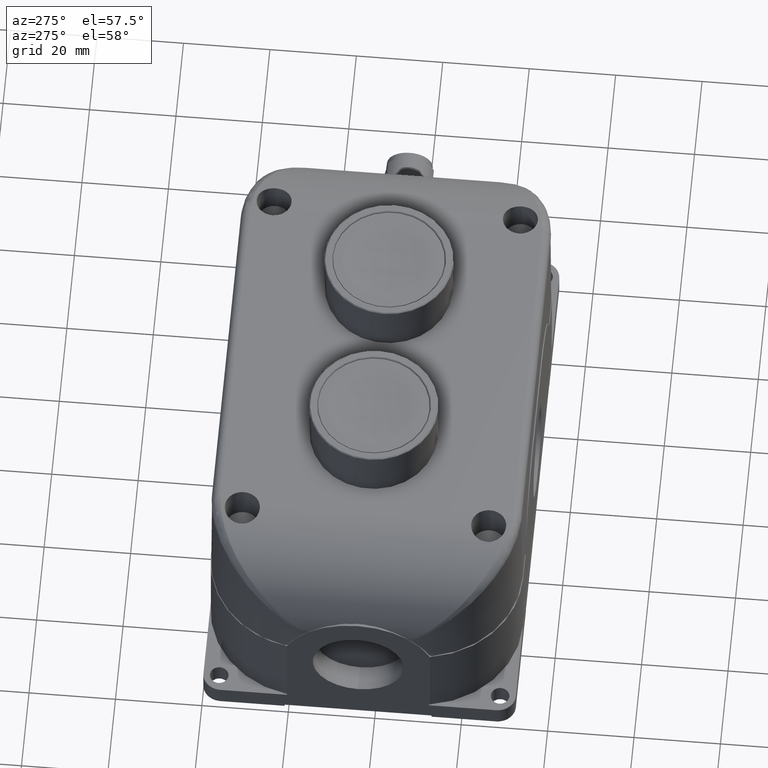
[diagram: clean part render]
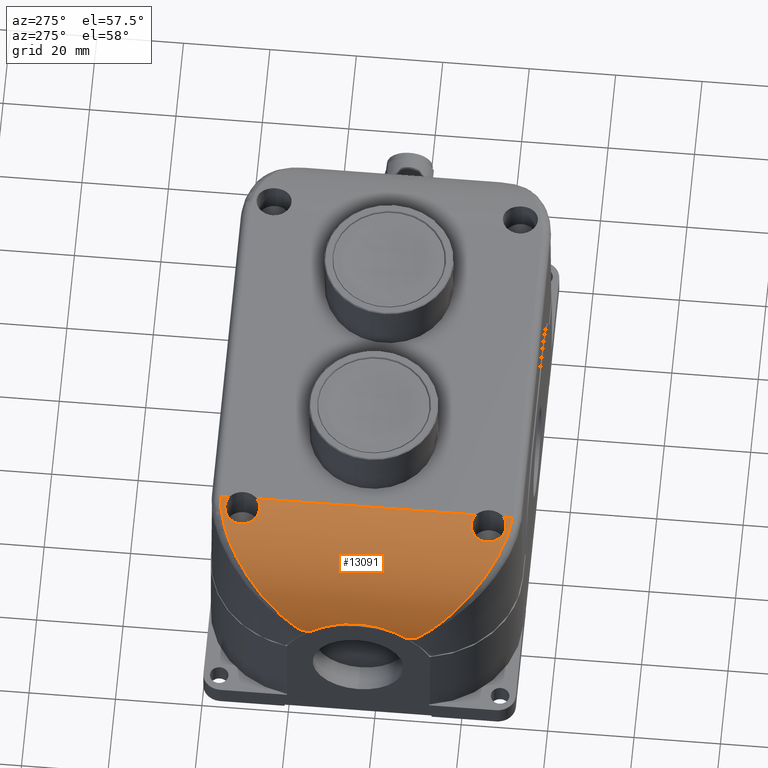
[diagram: same view with one face highlighted and labeled with its STEP entity id]
A machine part, auxiliary view. The second image highlights one B-rep face of the part: STEP entity #13091.
In plain terms, the highlighted cylindrical surface (partial cylindrical patch) has radius 22 mm, axis along (-0, 1, 0).
Its self-contained STEP definition (entity closure, byte-faithful):
#1 = CARTESIAN_POINT ( 'NONE',  ( 0.8661417322834558119, -0.09256890255721395011, 2.098425196850390417 ) ) ;
#67 = CARTESIAN_POINT ( 'NONE',  ( 0.3345613764245082278, -2.558619124878928286, 1.916113855097292706 ) ) ;
#99 = CARTESIAN_POINT ( 'NONE',  ( 0.1007366091802023716, -0.5548962451615992997, 1.638534046196226557 ) ) ;
#102 = CARTESIAN_POINT ( 'NONE',  ( 0.001841612179823913856, -1.856898138967294276, 1.288735238603163413 ) ) ;
#104 = CARTESIAN_POINT ( 'NONE',  ( 0.6127087765381049600, -2.582246262243622859, 2.060521301903375235 ) ) ;
#188 = B_SPLINE_CURVE_WITH_KNOTS ( 'NONE', 3,
 ( #22992, #591, #8344, #15845, #6157, #13540, #15729, #9917, #6632, #17315, #15483, #22864, #6272, #13792, #14028, #13662, #10030, #4572, #23113, #17425, #6518, #21065, #4458, #13908, #11849, #6403, #21185, #19246, #12079, #2633, #815, #5173, #17908, #18145, #16451, #6770, #7242, #1650, #19837, #5410, #19966, #20083, #14162, #21671, #23351, #8576, #9048, #10627, #18030, #10852, #8703, #8927, #23484, #21557, #3237, #4936, #12569, #6998, #1541, #1425, #19727, #12330, #16323, #18254, #1182, #23599, #14629, #5049, #3587, #10498, #14280, #23836, #3115, #16093, #5299, #22023, #23715, #21909, #7122, #12441, #14518, #20195, #3355, #1307, #16214, #8818, #3470, #6890, #10742, #17789, #12791, #15967, #14392, #21783, #12686, #67, #203, #10976, #18497, #9163, #7354, #11329, #9271, #18382, #9639, #16561, #14737, #18606, #1882, #17036, #7472, #18854, #1999, #7835, #22378, #5887, #22612, #13402, #20551, #23948, #13267, #22133, #6016 ),
 .UNSPECIFIED., .F., .F.,
 ( 4, 2, 1, 1, 1, 2, 2, 2, 1, 1, 1, 2, 2, 2, 2, 1, 1, 1, 1, 2, 2, 2, 2, 1, 1, 1, 1, 2, 2, 2, 1, 1, 1, 2, 2, 2, 1, 1, 1, 2, 2, 2, 2, 1, 1, 1, 1, 2, 2, 2, 2, 1, 1, 1, 1, 2, 2, 2, 2, 1, 1, 1, 1, 2, 2, 2, 2, 1, 1, 1, 1, 2, 2, 2, 2, 1, 1, 1, 2, 2, 4 ),
 ( 0.000000000000000000, 0.007812500000009754350, 0.01171875000001456821, 0.01367187500001721887, 0.01464843750001887032, 0.01513671875001937339, 0.01562500000001987646, 0.02343750000002967765, 0.02734375000003480549, 0.02929687500003716125, 0.03027343750003834086, 0.03076171875003906250, 0.03125000000003978762, 0.04687500000005581646, 0.05468750000006387252, 0.05859375000006774442, 0.06054687500006952772, 0.06152343750007042977, 0.06201171875007103346, 0.06225585937507118611, 0.06250000000007133183, 0.09375000000008341938, 0.1093750000000894701, 0.1171875000000924955, 0.1210937500000941747, 0.1230468750000950073, 0.1240234375000954237, 0.1245117187500954792, 0.1250000000000955347, 0.1562500000001010303, 0.1718750000001037781, 0.1796875000001054989, 0.1835937500001063594, 0.1855468750001066369, 0.1875000000001068867, 0.2187500000001071365, 0.2343750000001072475, 0.2421875000001071365, 0.2460937500001066924, 0.2480468750001063039, 0.2500000000001059153, 0.3125000000001009193, 0.3437500000000987543, 0.3593750000000976441, 0.3671875000000973110, 0.3710937500000969780, 0.3730468750000966449, 0.3740234375000962563, 0.3750000000000958122, 0.4375000000000536793, 0.4687500000000326406, 0.4843750000000221489, 0.4921875000000168199, 0.4960937500000141553, 0.4980468750000129896, 0.4990234375000127676, 0.5000000000000125455, 0.5625000000000016653, 0.5937499999999961142, 0.6093749999999936717, 0.6171874999999928946, 0.6210937499999923395, 0.6230468749999923395, 0.6240234374999925615, 0.6249999999999927836, 0.6874999999999946709, 0.7187499999999955591, 0.7343749999999960032, 0.7421874999999964473, 0.7460937499999963363, 0.7480468749999962252, 0.7490234374999960032, 0.7499999999999956701, 0.8124999999999967804, 0.8437499999999975575, 0.8593749999999976685, 0.8671874999999977796, 0.8710937499999977796, 0.8730468749999978906, 0.8749999999999980016, 1.000000000000000000 ),
 .UNSPECIFIED. ) ;
#203 = CARTESIAN_POINT ( 'NONE',  ( 0.3348529361902816692, -2.558841023264453174, 1.916340435162601663 ) ) ;
#230 = CARTESIAN_POINT ( 'NONE',  ( 0.01829746725359750192, -0.7762243022906477607, 1.409384866880365239 ) ) ;
#298 = CARTESIAN_POINT ( 'NONE',  ( 0.6085173729111201801, -2.545165003709337626, 2.059224326939194327 ) ) ;
#345 = CARTESIAN_POINT ( 'NONE',  ( 0.003236891198601761326, -0.8866149476767052340, 1.307095501945814142 ) ) ;
#418 = CARTESIAN_POINT ( 'NONE',  ( 0.7692112186359534309, -0.1415099728692291170, 2.093016579969817048 ) ) ;
#457 = CARTESIAN_POINT ( 'NONE',  ( 0.01737727192194687617, -0.7806402993266234880, 1.404911501961103149 ) ) ;
#530 = VECTOR ( 'NONE', #14732, 39.37007874015748143 ) ;
#549 = CARTESIAN_POINT ( 'NONE',  ( 0.7913578737794561002, -0.1432503447294375676, 2.095222525144630588 ) ) ;
#591 = CARTESIAN_POINT ( 'NONE',  ( 0.001841720136488634446, -1.918769987045393588, 1.288736891464564271 ) ) ;
#607 = VERTEX_POINT ( 'NONE', #12853 ) ;
#815 = CARTESIAN_POINT ( 'NONE',  ( 0.006343583512824237797, -1.995642458921169204, 1.336919255017511965 ) ) ;
#918 = CARTESIAN_POINT ( 'NONE',  ( 0.8133088647411277350, -0.4540116201021476283, 2.096842758641017657 ) ) ;
#1182 = CARTESIAN_POINT ( 'NONE',  ( 0.09889405128692130287, -2.287198780058350867, 1.634379372454685342 ) ) ;
#1307 = CARTESIAN_POINT ( 'NONE',  ( 0.2140365409079127701, -2.448348944538592864, 1.802336510270447834 ) ) ;
#1339 = CARTESIAN_POINT ( 'NONE',  ( 0.7488378059799274400, -0.1068207462019151732, 2.090610129235897841 ) ) ;
#1425 = CARTESIAN_POINT ( 'NONE',  ( 0.05685451682635827425, -2.197646050534180162, 1.540919633621040896 ) ) ;
#1456 = CARTESIAN_POINT ( 'NONE',  ( 0.3361118976784933099, -0.2863861123453723678, 1.917316380326353320 ) ) ;
#1463 = CARTESIAN_POINT ( 'NONE',  ( 0.7469714852096190905, -2.703360503351345034, 2.090219218594266959 ) ) ;
#1531 = CARTESIAN_POINT ( 'NONE',  ( 0.6558971625211310608, -0.1874065299168301557, 2.072539602161936667 ) ) ;
#1541 = CARTESIAN_POINT ( 'NONE',  ( 0.05631229575117554370, -2.196278614279569830, 1.539494085601603279 ) ) ;
#1568 = CARTESIAN_POINT ( 'NONE',  ( 0.6669168442397416241, -0.1254023315642557312, 2.075202146679974824 ) ) ;
#1572 = CARTESIAN_POINT ( 'NONE',  ( 0.6249487372184632239, -2.617233984142524950, 2.064206118165319293 ) ) ;
#1597 = DIRECTION ( 'NONE',  ( 1.193427144769828181E-32, -1.000000000000000000, -1.301089748959230030E-17 ) ) ;
#1650 = CARTESIAN_POINT ( 'NONE',  ( 0.01613736868033904120, -2.059545959847505880, 1.398714096457128298 ) ) ;
#1674 = LINE ( 'NONE', #9075, #4371 ) ;
#1800 = CARTESIAN_POINT ( 'NONE',  ( 0.6050715319361981148, -0.1436980444268200208, 2.058759013938519011 ) ) ;
#1803 = CARTESIAN_POINT ( 'NONE',  ( 0.01856980597421135568, -1.230980398208527449, 1.410740652623066582 ) ) ;
#1874 = ORIENTED_EDGE ( 'NONE', *, *, #21973, .F. ) ;
#1882 = CARTESIAN_POINT ( 'NONE',  ( 0.4856890277940424383, -2.652311264442051009, 2.010394956813148504 ) ) ;
#1910 = CARTESIAN_POINT ( 'NONE',  ( 0.007353560498031712529, -0.8418585548297514709, 1.344951615343757290 ) ) ;
#1914 = CARTESIAN_POINT ( 'NONE',  ( 0.01495228573199695356, -1.670657243704156469, 1.392656594265209602 ) ) ;
#1915 = CARTESIAN_POINT ( 'NONE',  ( 0.8542576590813031334, -2.679908787729352149, 2.098425196850390861 ) ) ;
#1963 = CARTESIAN_POINT ( 'NONE',  ( 0.001841612179823913856, -1.856898138967294276, 1.288735238603163413 ) ) ;
#1999 = CARTESIAN_POINT ( 'NONE',  ( 0.6049101541471098020, -2.702050348076197928, 2.058243834194321664 ) ) ;
#2031 = CARTESIAN_POINT ( 'NONE',  ( 0.05802391125949554751, -0.6455117925704212389, 1.543968020636553140 ) ) ;
#2045 = ORIENTED_EDGE ( 'NONE', *, *, #2533, .T. ) ;
#2106 = CARTESIAN_POINT ( 'NONE',  ( 0.6085173729111204022, -2.537717218982984413, 2.059224326939195215 ) ) ;
#2154 = CARTESIAN_POINT ( 'NONE',  ( 0.01233768976745509491, -0.8070361716877841873, 1.378402867395982945 ) ) ;
#2157 = CARTESIAN_POINT ( 'NONE',  ( 0.01867239427388533990, -1.615114764924744373, 1.411624699434561592 ) ) ;
#2271 = CARTESIAN_POINT ( 'NONE',  ( 0.04907954786700267219, -0.6686271151605495122, 1.519958012357263577 ) ) ;
#2369 = B_SPLINE_CURVE_WITH_KNOTS ( 'NONE', 3,
 ( #23702, #5401, #8806, #3346, #16203, #23939, #10730, #22012, #18135, #20183, #1531, #8919, #14505, #12782, #3578, #10964, #22120, #5516, #20664, #418, #12903, #549, #7820, #5759, #4061, #15206, #7948, #13140 ),
 .UNSPECIFIED., .F., .F.,
 ( 4, 2, 2, 2, 2, 2, 2, 2, 2, 2, 2, 2, 2, 4 ),
 ( 0.009078894597348247802, 0.009645839946869006615, 0.01021278529638976716, 0.01134667599543128479, 0.01191362134495204360, 0.01248056669447280241, 0.01304751204399355949, 0.01361445739351431830, 0.01474834809255582205, 0.01531529344207657566, 0.01588223879159732926, 0.01644918414111808114, 0.01701612949063883648, 0.01815002018968034370 ),
 .UNSPECIFIED. ) ;
#2386 = CARTESIAN_POINT ( 'NONE',  ( 0.003184492443380951884, -0.8874633501236660615, 1.306488029038054277 ) ) ;
#2533 = EDGE_CURVE ( 'NONE', #3013, #19167, #12434, .T. ) ;
#2633 = CARTESIAN_POINT ( 'NONE',  ( 0.006327623813133101752, -1.995498356776611582, 1.336788055019816790 ) ) ;
#2636 = B_SPLINE_CURVE_WITH_KNOTS ( 'NONE', 3,
 ( #3974, #7274, #12715, #16952, #18639, #12951, #1803, #20353, #3749, #12824, #3620, #14660, #11366, #10883, #11012, #18288, #2157, #1914, #9303, #16592, #18765, #16704, #5800, #102 ),
 .UNSPECIFIED., .F., .F.,
 ( 4, 2, 2, 2, 2, 2, 2, 2, 2, 2, 2, 4 ),
 ( 5.421010862427522170E-20, 0.002953563514493869578, 0.005907127028987739156, 0.007383908786234678716, 0.008860690543481618275, 0.01181425405797551474, 0.01329103581522247252, 0.01476781757246943202, 0.01772138108696335104, 0.01919816284421031055, 0.02067494460145726659, 0.02362850811595116132 ),
 .UNSPECIFIED. ) ;
#2843 = CARTESIAN_POINT ( 'NONE',  ( 0.8661417322834599197, -1.423117759614849209, 1.232283464566926279 ) ) ;
#2879 = CARTESIAN_POINT ( 'NONE',  ( 0.001953792776274586480, -0.9163902053653795177, 1.290538851265910170 ) ) ;
#2998 = CARTESIAN_POINT ( 'NONE',  ( 0.002236803127146920478, -0.9075597643606624354, 1.294491036417369845 ) ) ;
#3010 = DIRECTION ( 'NONE',  ( 3.191891195797319926E-15, -1.000000000000000000, -1.301089748958940062E-17 ) ) ;
#3013 = VERTEX_POINT ( 'NONE', #1963 ) ;
#3023 = DIRECTION ( 'NONE',  ( 1.193427144769828181E-32, -1.000000000000000000, -1.301089748959230030E-17 ) ) ;
#3094 = CARTESIAN_POINT ( 'NONE',  ( 0.6127087765380857531, -0.3381517740546485240, 2.060521301903370794 ) ) ;
#3115 = CARTESIAN_POINT ( 'NONE',  ( 0.1223947386637908585, -2.327259747226173570, 1.676177694695409448 ) ) ;
#3211 = CARTESIAN_POINT ( 'NONE',  ( 0.6502906128702754529, -0.4096729153429863879, 2.071173551909850197 ) ) ;
#3237 = CARTESIAN_POINT ( 'NONE',  ( 0.04699846577615317961, -2.171584271941462418, 1.513783572514300513 ) ) ;
#3346 = CARTESIAN_POINT ( 'NONE',  ( 0.6111554180205517328, -0.2712228424840503749, 2.060042306304007198 ) ) ;
#3355 = CARTESIAN_POINT ( 'NONE',  ( 0.2135183608964209279, -2.447778197691483637, 1.801743200329003036 ) ) ;
#3394 = CARTESIAN_POINT ( 'NONE',  ( 0.6911231256759843289, -2.685062381047807367, 2.080584779871272438 ) ) ;
#3455 = CARTESIAN_POINT ( 'NONE',  ( 0.6188970401196082216, -2.486657168306565691, 2.062397958311685819 ) ) ;
#3470 = CARTESIAN_POINT ( 'NONE',  ( 0.2528001529975701933, -2.488944620583614320, 1.844475875940662313 ) ) ;
#3578 = CARTESIAN_POINT ( 'NONE',  ( 0.6911618647547002059, -0.1611485973169818620, 2.080593241783396774 ) ) ;
#3587 = CARTESIAN_POINT ( 'NONE',  ( 0.1199410752247345863, -2.323297000051620209, 1.672044755812354122 ) ) ;
#3617 = CARTESIAN_POINT ( 'NONE',  ( 0.3405797950331863055, -0.2830180749166740783, 1.920754470845516870 ) ) ;
#3620 = CARTESIAN_POINT ( 'NONE',  ( 0.02453863454552325518, -1.383614860935655111, 1.436992346969364398 ) ) ;
#3621 = CARTESIAN_POINT ( 'NONE',  ( 0.8133088647411338412, -2.698106108291115746, 2.096842758641017657 ) ) ;
#3746 = CARTESIAN_POINT ( 'NONE',  ( 0.03519911008238407746, -0.7104900611021052192, 1.476693857342990412 ) ) ;
#3749 = CARTESIAN_POINT ( 'NONE',  ( 0.02152459155223300849, -1.287633214198647291, 1.424205414149503968 ) ) ;
#3750 = CARTESIAN_POINT ( 'NONE',  ( 0.6189180320872201824, -2.603747136501588511, 2.062404331589688056 ) ) ;
#3857 = CARTESIAN_POINT ( 'NONE',  ( 0.08341038291025541784, -0.5885326879020100765, 1.603368218224862307 ) ) ;
#3972 = CARTESIAN_POINT ( 'NONE',  ( 0.006411953730265049570, -0.8499734988133909042, 1.337479671303790640 ) ) ;
#3974 = CARTESIAN_POINT ( 'NONE',  ( 0.001841612179821728321, -0.9893373802624078062, 1.288735238603165856 ) ) ;
#4061 = CARTESIAN_POINT ( 'NONE',  ( 0.8204096317628171153, -0.1504267633096004753, 2.097244569625061672 ) ) ;
#4100 = CARTESIAN_POINT ( 'NONE',  ( 0.05772343107110164406, -0.6462621750073401783, 1.543187831557428780 ) ) ;
#4221 = CARTESIAN_POINT ( 'NONE',  ( 0.01757150610732320650, -0.7796992037822456645, 1.405864209362035266 ) ) ;
#4371 = VECTOR ( 'NONE', #3023, 39.37007874015748143 ) ;
#4429 = CYLINDRICAL_SURFACE ( 'NONE', #20263, 0.8661417322834645827 ) ;
#4458 = CARTESIAN_POINT ( 'NONE',  ( 0.004967016337723701748, -1.982143988605733487, 1.324955182837775025 ) ) ;
#4572 = CARTESIAN_POINT ( 'NONE',  ( 0.003135471516476661703, -1.957974911269999785, 1.305915798945181061 ) ) ;
#4816 = CARTESIAN_POINT ( 'NONE',  ( 0.001841844898760048839, -0.9239374927080419297, 1.288738801626836405 ) ) ;
#4841 = VECTOR ( 'NONE', #1597, 39.37007874015748143 ) ;
#4912 = CARTESIAN_POINT ( 'NONE',  ( 0.7252015191286655948, -0.4553616320702779663, 2.087007149983035159 ) ) ;
#4936 = CARTESIAN_POINT ( 'NONE',  ( 0.04998130175751006044, -2.179837738423962445, 1.522366639517260367 ) ) ;
#5049 = CARTESIAN_POINT ( 'NONE',  ( 0.1172873721510090811, -2.318962879577000979, 1.667524064741148671 ) ) ;
#5080 = CARTESIAN_POINT ( 'NONE',  ( 0.3379716277181327166, -0.2849797114050886537, 1.918752244877042656 ) ) ;
#5173 = CARTESIAN_POINT ( 'NONE',  ( 0.007431803143690587053, -2.005452352513765746, 1.345855213137951534 ) ) ;
#5208 = CARTESIAN_POINT ( 'NONE',  ( 0.6700753136406780719, -0.1245577888117739979, 2.075942504065766414 ) ) ;
#5214 = CARTESIAN_POINT ( 'NONE',  ( 0.7767494861681516483, -2.704482640355337253, 2.093831852209590672 ) ) ;
#5278 = CARTESIAN_POINT ( 'NONE',  ( 0.7915283417911979091, -0.4588656622867783308, 2.095237368245717491 ) ) ;
#5299 = CARTESIAN_POINT ( 'NONE',  ( 0.1511359486014044184, -2.371022879156061247, 1.721822672184257774 ) ) ;
#5328 = CARTESIAN_POINT ( 'NONE',  ( 0.3368555598309774801, -0.2858231826502009021, 1.917891128537969836 ) ) ;
#5387 = CARTESIAN_POINT ( 'NONE',  ( 0.8661417322834634724, -2.753666616672484135, 2.098425196850390417 ) ) ;
#5401 = CARTESIAN_POINT ( 'NONE',  ( 0.6085173729111008623, -0.2936227307940071918, 2.059224326939190775 ) ) ;
#5410 = CARTESIAN_POINT ( 'NONE',  ( 0.01701630714355202578, -2.063925009403240640, 1.403127955378421277 ) ) ;
#5437 = CARTESIAN_POINT ( 'NONE',  ( 0.4870048761947594618, -0.1933069962651689233, 2.011036956863434089 ) ) ;
#5516 = CARTESIAN_POINT ( 'NONE',  ( 0.7469520531852735790, -0.1428754138917538441, 2.090216910384532500 ) ) ;
#5559 = CARTESIAN_POINT ( 'NONE',  ( 0.006386756890016602461, -0.8501997396606104651, 1.337273404447492542 ) ) ;
#5683 = CARTESIAN_POINT ( 'NONE',  ( 0.004161808669091626202, -0.8734896715513945642, 1.317128912101408922 ) ) ;
#5759 = CARTESIAN_POINT ( 'NONE',  ( 0.8133280650598400108, -0.1481332300404223645, 2.096844251388312763 ) ) ;
#5797 = CARTESIAN_POINT ( 'NONE',  ( 0.01746934059617263543, -0.7801937740536216692, 1.405363506644868643 ) ) ;
#5800 = CARTESIAN_POINT ( 'NONE',  ( 0.003412497235303856707, -1.825827447706299456, 1.312786141613737190 ) ) ;
#5887 = CARTESIAN_POINT ( 'NONE',  ( 0.6524807389082794007, -2.716805881828814773, 2.071674713695164982 ) ) ;
#5915 = CARTESIAN_POINT ( 'NONE',  ( 0.01929456246310256098, -0.7715566747232763811, 1.414120924181112127 ) ) ;
#5996 = CARTESIAN_POINT ( 'NONE',  ( 0.8661417322834584764, -2.419747615847355870, 2.098425196850353114 ) ) ;
#6016 = CARTESIAN_POINT ( 'NONE',  ( 0.8661417322834634724, -2.753666616672484135, 2.098425196850390417 ) ) ;
#6045 = CARTESIAN_POINT ( 'NONE',  ( 0.01781143067775255856, -0.7785433622549443600, 1.407034765784137109 ) ) ;
#6091 = LINE ( 'NONE', #17362, #8962 ) ;
#6111 = CARTESIAN_POINT ( 'NONE',  ( 0.8410948656901580112, -2.402851261019194329, 2.098173010866299038 ) ) ;
#6132 = DIRECTION ( 'NONE',  ( -3.191891195797319926E-15, 1.000000000000000000, 1.301089748958940062E-17 ) ) ;
#6157 = CARTESIAN_POINT ( 'NONE',  ( 0.002018005191106077376, -1.930959473872766230, 1.291380897992930654 ) ) ;
#6160 = CARTESIAN_POINT ( 'NONE',  ( 0.001841612179820635662, -0.9309917753628809134, 1.288735238603166078 ) ) ;
#6222 = CARTESIAN_POINT ( 'NONE',  ( 0.7111060864151853567, -2.395479636505892795, 2.084544678014395913 ) ) ;
#6272 = CARTESIAN_POINT ( 'NONE',  ( 0.002672794282844555974, -1.949465419140730349, 1.300282862193370859 ) ) ;
#6348 = CARTESIAN_POINT ( 'NONE',  ( 0.8204096317628210011, -2.394521251498585190, 2.097244569625060340 ) ) ;
#6364 = VERTEX_POINT ( 'NONE', #15296 ) ;
#6403 = CARTESIAN_POINT ( 'NONE',  ( 0.006018160754495924768, -1.992657823120648874, 1.334214972749048655 ) ) ;
#6518 = CARTESIAN_POINT ( 'NONE',  ( 0.003899485845611548075, -1.969612399595574326, 1.314541302815372958 ) ) ;
#6632 = CARTESIAN_POINT ( 'NONE',  ( 0.002195237632261224335, -1.937388270734881068, 1.293911110066036096 ) ) ;
#6675 = ORIENTED_EDGE ( 'NONE', *, *, #12844, .T. ) ;
#6770 = CARTESIAN_POINT ( 'NONE',  ( 0.01413481403125706019, -2.049001749342475698, 1.388154366429206643 ) ) ;
#6890 = CARTESIAN_POINT ( 'NONE',  ( 0.2830504602455091168, -2.516496087604383369, 1.872906250714544418 ) ) ;
#6916 = CARTESIAN_POINT ( 'NONE',  ( 0.3838554666793714265, -0.2524194380955180894, 1.951883645287492364 ) ) ;
#6978 = CARTESIAN_POINT ( 'NONE',  ( 0.6111224735997431434, -0.3307337894535465894, 2.060032139637764992 ) ) ;
#6998 = CARTESIAN_POINT ( 'NONE',  ( 0.05550205079349856269, -2.194226904795896882, 1.537355379918053710 ) ) ;
#7029 = CARTESIAN_POINT ( 'NONE',  ( 0.3142301376979201311, -0.3030028607126319939, 1.900348314381299808 ) ) ;
#7099 = CARTESIAN_POINT ( 'NONE',  ( 0.6408157083961573131, -0.3984408576857225714, 2.068643163140307717 ) ) ;
#7122 = CARTESIAN_POINT ( 'NONE',  ( 0.2001505066608203487, -2.432748001196164633, 1.786113544466743086 ) ) ;
#7158 = CARTESIAN_POINT ( 'NONE',  ( 0.3654675519799567285, -0.2650138395158686544, 1.939095042005015479 ) ) ;
#7242 = CARTESIAN_POINT ( 'NONE',  ( 0.01501867422326921657, -2.053797155724211621, 1.392939852383026755 ) ) ;
#7268 = CARTESIAN_POINT ( 'NONE',  ( 0.3563394056406281596, -0.2714292223245945990, 1.932570126590026804 ) ) ;
#7274 = CARTESIAN_POINT ( 'NONE',  ( 0.003412531468734852913, -1.020408748629878515, 1.312786665741832781 ) ) ;
#7354 = CARTESIAN_POINT ( 'NONE',  ( 0.4343466481311820671, -2.624967402383867388, 1.983263205744863811 ) ) ;
#7381 = CARTESIAN_POINT ( 'NONE',  ( 0.04049806941872303306, -0.6935583136394424253, 1.494158554023521601 ) ) ;
#7384 = CARTESIAN_POINT ( 'NONE',  ( 0.7108928996926852095, -2.694757039149242583, 2.084503996820068483 ) ) ;
#7472 = CARTESIAN_POINT ( 'NONE',  ( 0.5447622412522243884, -2.679774028450760515, 2.037226395958504188 ) ) ;
#7507 = CARTESIAN_POINT ( 'NONE',  ( 0.005572685935243510205, -0.8575378698729156923, 1.330589644883156231 ) ) ;
#7510 = CARTESIAN_POINT ( 'NONE',  ( 0.6090373965462060335, -2.560042691810697324, 2.059386875227421587 ) ) ;
#7631 = CARTESIAN_POINT ( 'NONE',  ( 0.006590970735240920912, -0.8483809380421042379, 1.338934956528950782 ) ) ;
#7745 = CARTESIAN_POINT ( 'NONE',  ( 0.2167833920380318191, -0.3950167351456632669, 1.805464622207041847 ) ) ;
#7820 = CARTESIAN_POINT ( 'NONE',  ( 0.7987841407396016891, -0.1445356860657121267, 2.095832879722903996 ) ) ;
#7835 = CARTESIAN_POINT ( 'NONE',  ( 0.6276942356884382956, -2.709402082169073189, 2.064994119039700315 ) ) ;
#7861 = CARTESIAN_POINT ( 'NONE',  ( 0.2158988637297006297, -0.3959855871812753003, 1.804459933399059191 ) ) ;
#7948 = CARTESIAN_POINT ( 'NONE',  ( 0.8542660898482459242, -0.1663333478069784488, 2.098425196850390861 ) ) ;
#8062 = CARTESIAN_POINT ( 'NONE',  ( 0.8542660898482491438, -2.410427835995963886, 2.098425196850391750 ) ) ;
#8206 = VERTEX_POINT ( 'NONE', #11565 ) ;
#8216 = CARTESIAN_POINT ( 'NONE',  ( 0.002751203190810908115, -0.8950630952158752374, 1.301293585233215921 ) ) ;
#8264 = VERTEX_POINT ( 'NONE', #16661 ) ;
#8321 = CARTESIAN_POINT ( 'NONE',  ( 0.7988407537652660872, -0.4575922691694840339, 2.095836973709891637 ) ) ;
#8344 = CARTESIAN_POINT ( 'NONE',  ( 0.001870815502833378082, -1.922420348776649801, 1.289187737262617706 ) ) ;
#8440 = CARTESIAN_POINT ( 'NONE',  ( 0.8205204874370781720, -0.4516783321491611436, 2.097250826054515294 ) ) ;
#8463 = CARTESIAN_POINT ( 'NONE',  ( 0.002938506363504324315, -0.8915008017944369145, 1.303618279187590767 ) ) ;
#8576 = CARTESIAN_POINT ( 'NONE',  ( 0.02616712671754803377, -2.103722745736439581, 1.443658194443876885 ) ) ;
#8703 = CARTESIAN_POINT ( 'NONE',  ( 0.03386347620584882062, -2.131354467480289117, 1.472106399687863165 ) ) ;
#8733 = CARTESIAN_POINT ( 'NONE',  ( 0.4924802857255150546, -0.1906171119330000996, 2.013683368363367254 ) ) ;
#8806 = CARTESIAN_POINT ( 'NONE',  ( 0.6090449587852534430, -0.2860909264626072535, 2.059389243528787716 ) ) ;
#8818 = CARTESIAN_POINT ( 'NONE',  ( 0.2332732170863936749, -2.469480186878517447, 1.824302146539421798 ) ) ;
#8848 = CARTESIAN_POINT ( 'NONE',  ( 0.2934885485727797283, -0.3202234267405317247, 1.882694961537056511 ) ) ;
#8908 = CARTESIAN_POINT ( 'NONE',  ( 0.7469714852096090985, -0.4592660151623781384, 2.090219218594267403 ) ) ;
#8919 = CARTESIAN_POINT ( 'NONE',  ( 0.6668307867890442830, -0.1775793407516313704, 2.075200010190959343 ) ) ;
#8927 = CARTESIAN_POINT ( 'NONE',  ( 0.03409996351720775976, -2.132147903546228740, 1.472925426673008964 ) ) ;
#8955 = CARTESIAN_POINT ( 'NONE',  ( 0.4865034775885100915, -0.1935551159689524181, 2.010792619446633456 ) ) ;
#8962 = VECTOR ( 'NONE', #13718, 39.37007874015748143 ) ;
#9021 = CARTESIAN_POINT ( 'NONE',  ( 0.6189180320872014196, -0.3596526483126159524, 2.062404331589684947 ) ) ;
#9048 = CARTESIAN_POINT ( 'NONE',  ( 0.02840864440463223076, -2.112280694238318990, 1.452446288011292719 ) ) ;
#9075 = CARTESIAN_POINT ( 'NONE',  ( 0.8661417322834560339, -1.423117759614841660, 2.098425196850391750 ) ) ;
#9081 = CARTESIAN_POINT ( 'NONE',  ( 0.6354545612934311416, -0.1339020790291109431, 2.067728402435348389 ) ) ;
#9112 = LINE ( 'NONE', #18319, #4841 ) ;
#9163 = CARTESIAN_POINT ( 'NONE',  ( 0.4215996992656261821, -2.617507545310437944, 1.975791475859502322 ) ) ;
#9190 = CARTESIAN_POINT ( 'NONE',  ( 0.4879167528809734700, -0.1928567222746197796, 2.011480244825173624 ) ) ;
#9204 = EDGE_CURVE ( 'NONE', #22292, #607, #2369, .T. ) ;
#9271 = CARTESIAN_POINT ( 'NONE',  ( 0.4633383307827772524, -2.640900515109251057, 1.999124044076728168 ) ) ;
#9300 = CARTESIAN_POINT ( 'NONE',  ( 0.03456767051531655505, -0.7125839134090165006, 1.474536894070666238 ) ) ;
#9303 = CARTESIAN_POINT ( 'NONE',  ( 0.01363177683542425057, -1.688942486081935090, 1.385550100377870963 ) ) ;
#9304 = CARTESIAN_POINT ( 'NONE',  ( 0.7692252846355109863, -2.704727946057609245, 2.093018637006751614 ) ) ;
#9425 = CARTESIAN_POINT ( 'NONE',  ( 0.04330400545192511497, -0.6852068817701668646, 1.502794121043538267 ) ) ;
#9504 = CARTESIAN_POINT ( 'NONE',  ( 0.6111554180205711617, -2.515317330673028984, 2.060042306304010751 ) ) ;
#9549 = CARTESIAN_POINT ( 'NONE',  ( 0.003469672749804256044, -0.8829894198427435947, 1.309745077278233083 ) ) ;
#9608 = B_SPLINE_CURVE_WITH_KNOTS ( 'NONE', 3,
 ( #21400, #10119, #17518, #8440, #918, #8321, #5278, #17881, #20171, #19814, #8908, #4912, #14260, #10475, #23692, #12665, #21887, #3211, #7099, #12419, #9021, #3094, #6978, #10601, #10830, #21532 ),
 .UNSPECIFIED., .F., .F.,
 ( 4, 2, 2, 2, 2, 2, 2, 2, 2, 2, 2, 2, 4 ),
 ( 6.285829819150322808E-17, 0.001134861824668594293, 0.001702292737002858479, 0.002269723649337122666, 0.002837154561671387069, 0.003404585474005651039, 0.004539447298674182014, 0.005106878211008442948, 0.005674309123342703882, 0.006809170948011217944, 0.007944032772679732873, 0.008511463685013990338, 0.009078894597348247802 ),
 .UNSPECIFIED. ) ;
#9623 = CARTESIAN_POINT ( 'NONE',  ( 0.8133280650598440076, -2.392227718229407607, 2.096844251388311875 ) ) ;
#9639 = CARTESIAN_POINT ( 'NONE',  ( 0.4804247112161899036, -2.649680343261453519, 2.007802443815530857 ) ) ;
#9665 = CARTESIAN_POINT ( 'NONE',  ( 0.02759537512390755620, -0.7369181417072634410, 1.449497968922225377 ) ) ;
#9784 = B_SPLINE_CURVE_WITH_KNOTS ( 'NONE', 3,
 ( #298, #2106, #20067, #9504, #22469, #3455, #23819, #14612, #22007, #13383, #22938, #15440, #22590, #18950, #11443, #6222, #11558, #9983, #17381, #11914, #17138, #18836, #15324, #9623, #6348, #6111, #8062, #5996 ),
 .UNSPECIFIED., .F., .F.,
 ( 4, 2, 2, 2, 2, 2, 2, 2, 2, 2, 2, 2, 2, 4 ),
 ( 0.009078894597347652792, 0.009645839946868368237, 0.01021278529638908368, 0.01134667599543051283, 0.01191362134495123001, 0.01248056669447194719, 0.01304751204399266437, 0.01361445739351338155, 0.01474834809255481938, 0.01531529344207553829, 0.01588223879159625374, 0.01644918414111697091, 0.01701612949063768809, 0.01815002018967914327 ),
 .UNSPECIFIED. ) ;
#9789 = CARTESIAN_POINT ( 'NONE',  ( 0.003177953801968534837, -0.8875697932070658602, 1.306412032861945738 ) ) ;
#9883 = EDGE_CURVE ( 'NONE', #17413, #607, #6091, .T. ) ;
#9917 = CARTESIAN_POINT ( 'NONE',  ( 0.002179737067618213713, -1.936887370413604037, 1.293693424121704627 ) ) ;
#9983 = CARTESIAN_POINT ( 'NONE',  ( 0.7469520531852825718, -2.386969902080740447, 2.090216910384533389 ) ) ;
#10002 = DIRECTION ( 'NONE',  ( -1.000000000000000000, -3.154042683594194825E-15, 0.000000000000000000 ) ) ;
#10030 = CARTESIAN_POINT ( 'NONE',  ( 0.003107913958571919665, -1.957514809862292759, 1.305592094458403185 ) ) ;
#10119 = CARTESIAN_POINT ( 'NONE',  ( 0.8542576590813003579, -0.4358142995403838649, 2.098425196850390861 ) ) ;
#10142 = CARTESIAN_POINT ( 'NONE',  ( 0.002223804236795886950, -0.9079556443909432284, 1.294310250842384269 ) ) ;
#10228 = EDGE_LOOP ( 'NONE', ( #13757, #23262, #19326, #6675, #21773, #15622, #2045, #22259, #1874, #20312, #15802, #17354 ) ) ;
#10291 = VERTEX_POINT ( 'NONE', #13324 ) ;
#10475 = CARTESIAN_POINT ( 'NONE',  ( 0.6911231256759700070, -0.4409678928588388058, 2.080584779871271106 ) ) ;
#10498 = CARTESIAN_POINT ( 'NONE',  ( 0.1212739969769660309, -2.325454900105651479, 1.674295379818241614 ) ) ;
#10601 = CARTESIAN_POINT ( 'NONE',  ( 0.6090373965461862715, -0.3159482036217209910, 2.059386875227417590 ) ) ;
#10627 = CARTESIAN_POINT ( 'NONE',  ( 0.03127207375782555671, -2.122487662378208739, 1.462959622878924115 ) ) ;
#10730 = CARTESIAN_POINT ( 'NONE',  ( 0.6251004410052475313, -0.2287402789924418423, 2.064249139571170844 ) ) ;
#10742 = CARTESIAN_POINT ( 'NONE',  ( 0.2932939897080711900, -2.525405712688494564, 1.882078352473091964 ) ) ;
#10771 = CARTESIAN_POINT ( 'NONE',  ( 0.2532943682463003054, -0.3572918177666085104, 1.844506710551722994 ) ) ;
#10776 = CARTESIAN_POINT ( 'NONE',  ( 0.7988407537652733037, -2.701686757358451541, 2.095836973709892082 ) ) ;
#10830 = CARTESIAN_POINT ( 'NONE',  ( 0.6085173729111006402, -0.3085246789343762952, 2.059224326939189886 ) ) ;
#10852 = CARTESIAN_POINT ( 'NONE',  ( 0.03342348143902727081, -2.129869817878435878, 1.470574149362198213 ) ) ;
#10883 = CARTESIAN_POINT ( 'NONE',  ( 0.02357470395147143183, -1.500906264650618382, 1.432994763971827235 ) ) ;
#10964 = CARTESIAN_POINT ( 'NONE',  ( 0.7111060864151741434, -0.1513851483169063039, 2.084544678014395469 ) ) ;
#10976 = CARTESIAN_POINT ( 'NONE',  ( 0.3591308762624688122, -2.577288606149571226, 1.935175228823848403 ) ) ;
#11009 = CARTESIAN_POINT ( 'NONE',  ( 0.6680188057240626920, -0.1251063778157062156, 2.075461928131462574 ) ) ;
#11012 = CARTESIAN_POINT ( 'NONE',  ( 0.02300286679730931955, -1.520163449400087519, 1.430598802716649187 ) ) ;
#11126 = CARTESIAN_POINT ( 'NONE',  ( 0.06991728494460187904, -0.6173696309837196639, 1.573270051535194947 ) ) ;
#11132 = CARTESIAN_POINT ( 'NONE',  ( 0.8413564850316723742, -2.687355672329286183, 2.098182146856142793 ) ) ;
#11237 = CARTESIAN_POINT ( 'NONE',  ( 0.03584517314468299576, -0.7083618118893546534, 1.478886763769257984 ) ) ;
#11329 = CARTESIAN_POINT ( 'NONE',  ( 0.4536448060996318143, -2.635670579028392968, 1.993927609020607061 ) ) ;
#11364 = CARTESIAN_POINT ( 'NONE',  ( 0.003929634245298236142, -0.8764954819119408214, 1.314726556799444168 ) ) ;
#11366 = CARTESIAN_POINT ( 'NONE',  ( 0.02434553202070068034, -1.462088223962766831, 1.436203498315899107 ) ) ;
#11443 = CARTESIAN_POINT ( 'NONE',  ( 0.6911618647547127514, -2.405243085505967215, 2.080593241783396774 ) ) ;
#11488 = CARTESIAN_POINT ( 'NONE',  ( 0.05314814193448617191, -0.6577380669260500801, 1.531257568910127320 ) ) ;
#11558 = CARTESIAN_POINT ( 'NONE',  ( 0.7250469596165695085, -2.390907822180586617, 2.086983220119174476 ) ) ;
#11565 = CARTESIAN_POINT ( 'NONE',  ( 0.8661417322834574772, -0.4264879033823488208, 2.098425196850353114 ) ) ;
#11606 = CARTESIAN_POINT ( 'NONE',  ( 0.007841729614336309662, -0.8379691959060538986, 1.348597802181166871 ) ) ;
#11640 = EDGE_CURVE ( 'NONE', #8206, #13416, #1674, .T. ) ;
#11849 = CARTESIAN_POINT ( 'NONE',  ( 0.005700358483546502306, -1.989642769689265567, 1.331511956859861012 ) ) ;
#11914 = CARTESIAN_POINT ( 'NONE',  ( 0.7692112186359608694, -2.385604461058214998, 2.093016579969817492 ) ) ;
#11948 = VERTEX_POINT ( 'NONE', #5387 ) ;
#11962 = CARTESIAN_POINT ( 'NONE',  ( 0.002410283015354001534, -0.9027173720765861997, 1.296864697876869199 ) ) ;
#12079 = CARTESIAN_POINT ( 'NONE',  ( 0.006303338876039120929, -1.995278514490309352, 1.336588055898731087 ) ) ;
#12209 = CARTESIAN_POINT ( 'NONE',  ( 0.002256601916945306582, -0.9069643332289132331, 1.294765798337142337 ) ) ;
#12330 = CARTESIAN_POINT ( 'NONE',  ( 0.06668163401000691548, -2.222231897239508758, 1.566554803711055710 ) ) ;
#12358 = CARTESIAN_POINT ( 'NONE',  ( 0.5228099660704703666, -0.1764636469124546692, 2.027512689441212324 ) ) ;
#12419 = CARTESIAN_POINT ( 'NONE',  ( 0.6249487372184451273, -0.3731394959535531686, 2.064206118165315740 ) ) ;
#12434 = LINE ( 'NONE', #18249, #530 ) ;
#12441 = CARTESIAN_POINT ( 'NONE',  ( 0.2073227503443673680, -2.440887783024969782, 1.794579247904163344 ) ) ;
#12569 = CARTESIAN_POINT ( 'NONE',  ( 0.05363306727882664188, -2.189435696955008837, 1.532362447779218817 ) ) ;
#12599 = CARTESIAN_POINT ( 'NONE',  ( 0.4598486724046460528, -0.2067691163561265477, 1.997777075162071592 ) ) ;
#12604 = CARTESIAN_POINT ( 'NONE',  ( 0.6667009104390920760, -2.668550439203197566, 2.075169313886291000 ) ) ;
#12665 = CARTESIAN_POINT ( 'NONE',  ( 0.6725834062886656417, -0.4290560969259814006, 2.076543903226809373 ) ) ;
#12686 = CARTESIAN_POINT ( 'NONE',  ( 0.3338966626417544936, -2.558112614213667868, 1.915596616489337434 ) ) ;
#12712 = CARTESIAN_POINT ( 'NONE',  ( 0.2632353493275078060, -0.3478057817625664350, 1.854293685338619824 ) ) ;
#12715 = CARTESIAN_POINT ( 'NONE',  ( 0.005782857170026016458, -1.052989870986767551, 1.333905876906032573 ) ) ;
#12782 = CARTESIAN_POINT ( 'NONE',  ( 0.6847471891410041867, -0.1648674615755752193, 2.079240498308623675 ) ) ;
#12791 = CARTESIAN_POINT ( 'NONE',  ( 0.3167087410594861541, -2.544732601330360833, 1.901914172184183904 ) ) ;
#12820 = CARTESIAN_POINT ( 'NONE',  ( 0.8326014543653462718, -0.09471657673989553050, 2.098425196850390861 ) ) ;
#12824 = CARTESIAN_POINT ( 'NONE',  ( 0.02372975983919644108, -1.344919695255674341, 1.433743545148276288 ) ) ;
#12844 = EDGE_CURVE ( 'NONE', #17413, #18079, #15499, .T. ) ;
#12853 = CARTESIAN_POINT ( 'NONE',  ( 0.8661417322834574772, -0.1756531276583725432, 2.098425196850353114 ) ) ;
#12896 = EDGE_CURVE ( 'NONE', #19167, #11948, #188, .T. ) ;
#12903 = CARTESIAN_POINT ( 'NONE',  ( 0.7765994306995460672, -0.1417450470366873605, 2.093816182454374175 ) ) ;
#12948 = CARTESIAN_POINT ( 'NONE',  ( 0.2188511698740203681, -0.3927620669886078275, 1.807802352486811204 ) ) ;
#12951 = CARTESIAN_POINT ( 'NONE',  ( 0.01740811249777237182, -1.212224171410918094, 1.405183800287104878 ) ) ;
#13068 = CARTESIAN_POINT ( 'NONE',  ( 0.03477018787371066039, -0.7119101761723654054, 1.475230859352500978 ) ) ;
#13091 = ADVANCED_FACE ( 'NONE', ( #19331 ), #4429, .T. ) ;
#13140 = CARTESIAN_POINT ( 'NONE',  ( 0.8661417322834574772, -0.1756531276583725432, 2.098425196850353114 ) ) ;
#13175 = CARTESIAN_POINT ( 'NONE',  ( 0.2149705055465502557, -0.3970046221392629637, 1.803403134545364273 ) ) ;
#13207 = CARTESIAN_POINT ( 'NONE',  ( 0.8661417322834584764, -2.419747615847355870, 2.098425196850353114 ) ) ;
#13267 = CARTESIAN_POINT ( 'NONE',  ( 0.7318286767760840972, -2.738328153834622025, 2.090629309212777898 ) ) ;
#13301 = CARTESIAN_POINT ( 'NONE',  ( 0.03737135505037356142, -0.7034093608080815851, 1.483992370142355410 ) ) ;
#13324 = CARTESIAN_POINT ( 'NONE',  ( 0.8661417322834623622, -2.670582391571316272, 2.098425196850353114 ) ) ;
#13383 = CARTESIAN_POINT ( 'NONE',  ( 0.6507020688173743572, -2.436865839579755111, 2.071218146206071253 ) ) ;
#13402 = CARTESIAN_POINT ( 'NONE',  ( 0.6620431850755826853, -2.719468051880560733, 2.074035359357168318 ) ) ;
#13416 = VERTEX_POINT ( 'NONE', #13207 ) ;
#13428 = CARTESIAN_POINT ( 'NONE',  ( 0.008884481101930416860, -0.8300050119988262587, 1.356126845308508910 ) ) ;
#13540 = CARTESIAN_POINT ( 'NONE',  ( 0.002106702408284070842, -1.934397898788208003, 1.292659321915137660 ) ) ;
#13662 = CARTESIAN_POINT ( 'NONE',  ( 0.003067018842496313513, -1.956826260748093071, 1.305110104315885478 ) ) ;
#13718 = DIRECTION ( 'NONE',  ( 1.193427144769828181E-32, -1.000000000000000000, -1.301089748959230030E-17 ) ) ;
#13757 = ORIENTED_EDGE ( 'NONE', *, *, #14316, .T. ) ;
#13792 = CARTESIAN_POINT ( 'NONE',  ( 0.002801752060563700124, -1.952084963819316510, 1.301910996224311834 ) ) ;
#13908 = CARTESIAN_POINT ( 'NONE',  ( 0.005447747219909463215, -1.987117102819954795, 1.329285908172981090 ) ) ;
#14028 = CARTESIAN_POINT ( 'NONE',  ( 0.002974643523869961205, -1.955230867129810646, 1.304010430853377978 ) ) ;
#14162 = CARTESIAN_POINT ( 'NONE',  ( 0.01728320375805739509, -2.065232504588157880, 1.404448292282207911 ) ) ;
#14170 = CARTESIAN_POINT ( 'NONE',  ( 0.001841612179822820980, -1.423117759614852096, 1.288735238603164968 ) ) ;
#14260 = CARTESIAN_POINT ( 'NONE',  ( 0.7108928996926722199, -0.4506625509602753543, 2.084503996820067595 ) ) ;
#14280 = CARTESIAN_POINT ( 'NONE',  ( 0.1218465394785560457, -2.326377751518106329, 1.675257849409683475 ) ) ;
#14306 = CARTESIAN_POINT ( 'NONE',  ( 0.3356991026045303417, -0.2866991388479631087, 1.916996756184279338 ) ) ;
#14316 = EDGE_CURVE ( 'NONE', #8206, #22292, #9608, .T. ) ;
#14392 = CARTESIAN_POINT ( 'NONE',  ( 0.3305767574873228476, -2.555571759993865211, 1.913001200010884473 ) ) ;
#14458 = CARTESIAN_POINT ( 'NONE',  ( 0.001841612179823367418, -1.915243743866818171, 1.288735238603166522 ) ) ;
#14505 = CARTESIAN_POINT ( 'NONE',  ( 0.6726007365587807207, -0.1730737280484024865, 2.076547688764716071 ) ) ;
#14518 = CARTESIAN_POINT ( 'NONE',  ( 0.2109315279254018183, -2.444916948675021295, 1.798768632281988911 ) ) ;
#14612 = CARTESIAN_POINT ( 'NONE',  ( 0.6368620901716256499, -2.454108859042466229, 2.067537269189748894 ) ) ;
#14629 = CARTESIAN_POINT ( 'NONE',  ( 0.1120293095059216315, -2.310221357161533540, 1.658404942720481667 ) ) ;
#14660 = CARTESIAN_POINT ( 'NONE',  ( 0.02454428000672544824, -1.442449904734853350, 1.437015554840280540 ) ) ;
#14732 = DIRECTION ( 'NONE',  ( 3.191891195797319926E-15, -1.000000000000000000, -1.301089748958940062E-17 ) ) ;
#14737 = CARTESIAN_POINT ( 'NONE',  ( 0.4845075804030908873, -2.651723574931699634, 2.009816152994380101 ) ) ;
#14764 = CARTESIAN_POINT ( 'NONE',  ( 0.2153095490476920337, -0.3966320586900363154, 1.803789517776158924 ) ) ;
#14770 = CARTESIAN_POINT ( 'NONE',  ( 0.6725834062886806297, -2.673150585114949962, 2.076543903226811150 ) ) ;
#14896 = CARTESIAN_POINT ( 'NONE',  ( 0.006369994660796267881, -0.8503504461459570063, 1.337136048584731451 ) ) ;
#15012 = CARTESIAN_POINT ( 'NONE',  ( 0.05847539604000219493, -0.6443868096675804402, 1.545137763169789791 ) ) ;
#15126 = CARTESIAN_POINT ( 'NONE',  ( 0.003205355797635862751, -0.8871244697437754567, 1.306730259785212844 ) ) ;
#15206 = CARTESIAN_POINT ( 'NONE',  ( 0.8410948656901552356, -0.1587567728302093917, 2.098173010866297705 ) ) ;
#15249 = CARTESIAN_POINT ( 'NONE',  ( 0.07786552729356825686, -0.5999464790149889870, 1.591445009790067422 ) ) ;
#15296 = CARTESIAN_POINT ( 'NONE',  ( 0.001841612179821728321, -0.9893373802624078062, 1.288735238603165856 ) ) ;
#15324 = CARTESIAN_POINT ( 'NONE',  ( 0.7987841407396070181, -2.388630174254697369, 2.095832879722903996 ) ) ;
#15330 = VECTOR ( 'NONE', #3010, 39.37007874015748143 ) ;
#15440 = CARTESIAN_POINT ( 'NONE',  ( 0.6668307867890589380, -2.421673828940615891, 2.075200010190961120 ) ) ;
#15483 = CARTESIAN_POINT ( 'NONE',  ( 0.002311972675362117605, -1.941041379038498160, 1.295541975648620614 ) ) ;
#15499 = B_SPLINE_CURVE_WITH_KNOTS ( 'NONE', 3,
 ( #21582, #12820, #17938, #1339, #21816, #21698, #20223, #18061, #22050, #5208, #11009, #1568, #9081, #1800, #16588, #23746, #12358, #16479, #18412, #8733, #16123, #9190, #5437, #8955, #12599, #23864, #23512, #6916, #7158, #7268, #19872, #3617, #5080, #5328, #1456, #14306, #7029, #8848, #12712, #10771, #19996, #18174, #20468, #12948, #7745, #7861, #14764, #13175, #20826, #18635, #17190, #99, #3857, #15249, #11126, #22293, #18880, #22642, #15012, #2031, #4100, #22405, #11488, #2271, #9425, #7381, #13301, #11237, #3746, #13068, #9300, #22514, #9665, #20708, #16833, #5915, #230, #6045, #4221, #5797, #17062, #457, #20350, #2154, #22166, #13428, #11606, #1910, #18523, #7631, #20578, #3972, #5559, #14896, #16700, #7507, #18994, #5683, #11364, #18763, #9549, #16950, #345, #15126, #2386, #9789, #8463, #8216, #21425, #11962, #19480, #12209, #2998, #10142, #22756, #2879, #4816, #20938 ),
 .UNSPECIFIED., .F., .F.,
 ( 4, 2, 2, 1, 1, 1, 2, 2, 2, 2, 1, 1, 1, 1, 2, 2, 2, 2, 1, 1, 1, 1, 2, 2, 2, 2, 1, 1, 1, 1, 2, 2, 2, 2, 2, 1, 1, 1, 1, 2, 2, 2, 1, 1, 1, 2, 2, 2, 1, 1, 1, 1, 1, 2, 2, 2, 2, 1, 1, 1, 1, 1, 2, 2, 2, 2, 1, 1, 1, 2, 2, 2, 1, 1, 1, 2, 2, 4 ),
 ( 0.000000000000000000, 0.06250000000002302325, 0.09375000000003450018, 0.1093750000000403566, 0.1171875000000434097, 0.1210937500000450334, 0.1230468750000458522, 0.1250000000000466849, 0.1875000000000771883, 0.2187500000000924261, 0.2343750000001000033, 0.2421875000001039169, 0.2460937500001059153, 0.2480468750001068590, 0.2490234375001072198, 0.2500000000001075806, 0.3125000000001163514, 0.3437500000001207368, 0.3593750000001229017, 0.3671875000001241229, 0.3710937500001247891, 0.3730468750001249556, 0.3740234375001251221, 0.3750000000001252887, 0.4375000000001372791, 0.4687500000001431077, 0.4843750000001459388, 0.4921875000001472156, 0.4960937500001480482, 0.4980468750001484923, 0.4990234375001487144, 0.5000000000001488809, 0.6250000000001858513, 0.6875000000002040590, 0.7187500000002130518, 0.7343750000002176037, 0.7421875000002199352, 0.7460937500002213785, 0.7480468750002221556, 0.7490234375002223777, 0.7500000000002225997, 0.7812500000002263745, 0.7968750000002283729, 0.8046875000002294831, 0.8085937500002302603, 0.8105468750002305933, 0.8125000000002310374, 0.8437500000002330358, 0.8593750000002338130, 0.8671875000002344791, 0.8710937500002345901, 0.8730468750002343681, 0.8740234375002342571, 0.8745117187502339240, 0.8750000000002334799, 0.9062500000002070566, 0.9218750000001940670, 0.9296875000001875167, 0.9335937500001841860, 0.9355468750001826317, 0.9365234375001816325, 0.9370117187501809664, 0.9372558593751804112, 0.9375000000001798561, 0.9531250000001368905, 0.9609375000001155742, 0.9648437500001045830, 0.9667968750000993650, 0.9677734375000967004, 0.9682617187500951461, 0.9687500000000934808, 0.9765625000000696110, 0.9804687500000578426, 0.9824218750000519584, 0.9833984375000489608, 0.9838867187500475175, 0.9843750000000459632, 1.000000000000000000 ),
 .UNSPECIFIED. ) ;
#15622 = ORIENTED_EDGE ( 'NONE', *, *, #21420, .T. ) ;
#15729 = CARTESIAN_POINT ( 'NONE',  ( 0.002156922599844156470, -1.936137474445977391, 1.293372152408869269 ) ) ;
#15802 = ORIENTED_EDGE ( 'NONE', *, *, #23801, .T. ) ;
#15845 = CARTESIAN_POINT ( 'NONE',  ( 0.001961102345404478614, -1.928082069202557536, 1.290537585477612437 ) ) ;
#15967 = CARTESIAN_POINT ( 'NONE',  ( 0.3259404256902843633, -2.551988697430919384, 1.909338868987820570 ) ) ;
#16093 = CARTESIAN_POINT ( 'NONE',  ( 0.1364470736657879824, -2.349811246628873196, 1.699696437494234047 ) ) ;
#16123 = CARTESIAN_POINT ( 'NONE',  ( 0.4892849712074103241, -0.1921824493156789326, 2.012143888145106807 ) ) ;
#16203 = CARTESIAN_POINT ( 'NONE',  ( 0.6127212680884289719, -0.2639451986054466848, 2.060525093719618450 ) ) ;
#16214 = CARTESIAN_POINT ( 'NONE',  ( 0.2142626423800578217, -2.448597695043686517, 1.802595089570651066 ) ) ;
#16246 = CARTESIAN_POINT ( 'NONE',  ( 0.6847794638847649606, -2.681389359742250456, 2.079247596894478800 ) ) ;
#16323 = CARTESIAN_POINT ( 'NONE',  ( 0.07686552091078750759, -2.244557526822731131, 1.589864855026216661 ) ) ;
#16451 = CARTESIAN_POINT ( 'NONE',  ( 0.01245949504509336406, -2.039587123258549628, 1.378803919803086364 ) ) ;
#16479 = CARTESIAN_POINT ( 'NONE',  ( 0.5117285613025561730, -0.1814481409060311190, 2.022667619142234585 ) ) ;
#16561 = CARTESIAN_POINT ( 'NONE',  ( 0.4832821154141302977, -2.651112601287709758, 2.009214262191708844 ) ) ;
#16588 = CARTESIAN_POINT ( 'NONE',  ( 0.5599970779234348939, -0.1607226715801574890, 2.042673152750112298 ) ) ;
#16592 = CARTESIAN_POINT ( 'NONE',  ( 0.01097847306639143303, -1.724595519023695900, 1.369977639738054087 ) ) ;
#16593 = CARTESIAN_POINT ( 'NONE',  ( 0.7543233991338801347, -2.704161475841026618, 2.091209826527811622 ) ) ;
#16661 = CARTESIAN_POINT ( 'NONE',  ( 0.6085173729111201801, -2.545165003709337626, 2.059224326939194327 ) ) ;
#16700 = CARTESIAN_POINT ( 'NONE',  ( 0.006365482745668019082, -0.8503910199752168220, 1.337099070807218348 ) ) ;
#16704 = CARTESIAN_POINT ( 'NONE',  ( 0.005784947346609385643, -1.793215387083620271, 1.333929234802412989 ) ) ;
#16705 = CARTESIAN_POINT ( 'NONE',  ( 0.8205204874370839452, -2.695772820338128817, 2.097250826054515294 ) ) ;
#16833 = CARTESIAN_POINT ( 'NONE',  ( 0.02139103417136391239, -0.7621033890334235616, 1.423735654797130490 ) ) ;
#16950 = CARTESIAN_POINT ( 'NONE',  ( 0.003312173277759021799, -0.8854176523729020420, 1.307961004243531233 ) ) ;
#16952 = CARTESIAN_POINT ( 'NONE',  ( 0.01091319168488692759, -1.121090759589352448, 1.370589834708388688 ) ) ;
#17036 = CARTESIAN_POINT ( 'NONE',  ( 0.5151452127257415414, -2.666918350180903730, 2.024776128143337406 ) ) ;
#17062 = CARTESIAN_POINT ( 'NONE',  ( 0.01740137636444434588, -0.7805233119271656195, 1.405029919269723315 ) ) ;
#17138 = CARTESIAN_POINT ( 'NONE',  ( 0.7765994306995531726, -2.385839535225673380, 2.093816182454374175 ) ) ;
#17190 = CARTESIAN_POINT ( 'NONE',  ( 0.1132095654986799982, -0.5332785241326932768, 1.661171832862365472 ) ) ;
#17315 = CARTESIAN_POINT ( 'NONE',  ( 0.002204876807185422814, -1.937693703478694074, 1.294046057903024849 ) ) ;
#17354 = ORIENTED_EDGE ( 'NONE', *, *, #11640, .F. ) ;
#17362 = CARTESIAN_POINT ( 'NONE',  ( 0.8661417322834560339, -1.423117759614841660, 2.098425196850391750 ) ) ;
#17381 = CARTESIAN_POINT ( 'NONE',  ( 0.7544173661206150516, -2.386163104624021702, 2.091221580168186822 ) ) ;
#17413 = VERTEX_POINT ( 'NONE', #1 ) ;
#17425 = CARTESIAN_POINT ( 'NONE',  ( 0.003491066780731052858, -1.963815922236912259, 1.310065520045985421 ) ) ;
#17518 = CARTESIAN_POINT ( 'NONE',  ( 0.8413564850316676003, -0.4432611841403181208, 2.098182146856142793 ) ) ;
#17789 = CARTESIAN_POINT ( 'NONE',  ( 0.3088688823192173305, -2.538358854430441625, 1.895378540046795512 ) ) ;
#17796 = LINE ( 'NONE', #14170, #15330 ) ;
#17881 = CARTESIAN_POINT ( 'NONE',  ( 0.7767494861681432106, -0.4603881521663698573, 2.093831852209589339 ) ) ;
#17908 = CARTESIAN_POINT ( 'NONE',  ( 0.008796650932639605777, -2.016125862710509864, 1.355941691363790502 ) ) ;
#17938 = CARTESIAN_POINT ( 'NONE',  ( 0.7989972716532353081, -0.09854799692390588117, 2.096474773149474391 ) ) ;
#18030 = CARTESIAN_POINT ( 'NONE',  ( 0.03276821789517173761, -2.127646820170078890, 1.468280281096813855 ) ) ;
#18061 = CARTESIAN_POINT ( 'NONE',  ( 0.6803694533605184613, -0.1218658165714502223, 2.078286634075511063 ) ) ;
#18067 = EDGE_CURVE ( 'NONE', #10291, #8264, #19526, .T. ) ;
#18079 = VERTEX_POINT ( 'NONE', #6160 ) ;
#18135 = CARTESIAN_POINT ( 'NONE',  ( 0.6411967913012849296, -0.2040693886410889502, 2.068719608081709627 ) ) ;
#18145 = CARTESIAN_POINT ( 'NONE',  ( 0.01146570324523089011, -2.033545621441994022, 1.372864391731459799 ) ) ;
#18174 = CARTESIAN_POINT ( 'NONE',  ( 0.2313645731912652992, -0.3794016826420342769, 1.821645379624551975 ) ) ;
#18179 = CARTESIAN_POINT ( 'NONE',  ( 0.6502906128702919952, -2.653767403531956948, 2.071173551909852861 ) ) ;
#18249 = CARTESIAN_POINT ( 'NONE',  ( 0.001841612179822820980, -1.423117759614852096, 1.288735238603164746 ) ) ;
#18254 = CARTESIAN_POINT ( 'NONE',  ( 0.09324845507416273938, -2.276705967243681794, 1.623425963545648942 ) ) ;
#18288 = CARTESIAN_POINT ( 'NONE',  ( 0.02080029465138562295, -1.577489249876144584, 1.421073909155590842 ) ) ;
#18319 = CARTESIAN_POINT ( 'NONE',  ( 0.8661417322834636945, -1.423117759614841660, 2.098425196850391750 ) ) ;
#18382 = CARTESIAN_POINT ( 'NONE',  ( 0.4747180690788029844, -2.646789215781128135, 2.004949173559183340 ) ) ;
#18412 = CARTESIAN_POINT ( 'NONE',  ( 0.4988819913556555852, -0.1875183019203707224, 2.016726241793265650 ) ) ;
#18497 = CARTESIAN_POINT ( 'NONE',  ( 0.3837809580121662179, -2.594154756158907116, 1.952290902124958372 ) ) ;
#18523 = CARTESIAN_POINT ( 'NONE',  ( 0.006836793352056780293, -0.8462338574383792000, 1.340905767526050729 ) ) ;
#18527 = CARTESIAN_POINT ( 'NONE',  ( 0.6111224735997625723, -2.574828277642521535, 2.060032139637768989 ) ) ;
#18606 = CARTESIAN_POINT ( 'NONE',  ( 0.4853247475768737718, -2.652130257088933796, 2.010216708241251204 ) ) ;
#18635 = CARTESIAN_POINT ( 'NONE',  ( 0.1530240782606476779, -0.4708450834400752516, 1.726517246562221830 ) ) ;
#18639 = CARTESIAN_POINT ( 'NONE',  ( 0.01367908828724299919, -1.156610542927542840, 1.386153777391200270 ) ) ;
#18763 = CARTESIAN_POINT ( 'NONE',  ( 0.003617040187722872589, -0.8808504058068027387, 1.311365208303796326 ) ) ;
#18765 = CARTESIAN_POINT ( 'NONE',  ( 0.009640883770106757275, -1.742034843767579222, 1.361488096049568108 ) ) ;
#18836 = CARTESIAN_POINT ( 'NONE',  ( 0.7913578737794620954, -2.387344832918424142, 2.095222525144630588 ) ) ;
#18854 = CARTESIAN_POINT ( 'NONE',  ( 0.5897969696450769961, -2.696767521246029364, 2.053312801727162018 ) ) ;
#18880 = CARTESIAN_POINT ( 'NONE',  ( 0.06167310227977990111, -0.6365408762220398087, 1.553299357107673417 ) ) ;
#18950 = CARTESIAN_POINT ( 'NONE',  ( 0.6847471891410176204, -2.408961949764560462, 2.079240498308625451 ) ) ;
#18994 = CARTESIAN_POINT ( 'NONE',  ( 0.004941845455075680529, -0.8641646571778395236, 1.324818908824796804 ) ) ;
#19167 = VERTEX_POINT ( 'NONE', #14458 ) ;
#19246 = CARTESIAN_POINT ( 'NONE',  ( 0.006267021877961679276, -1.994949056605870963, 1.336288529113242474 ) ) ;
#19326 = ORIENTED_EDGE ( 'NONE', *, *, #9883, .F. ) ;
#19331 = FACE_OUTER_BOUND ( 'NONE', #10228, .T. ) ;
#19365 = CARTESIAN_POINT ( 'NONE',  ( 0.6085173729111007512, -0.3010705155203607375, 2.059224326939190330 ) ) ;
#19480 = CARTESIAN_POINT ( 'NONE',  ( 0.002304926215723335572, -0.9055637163172010062, 1.295431992560009515 ) ) ;
#19526 = B_SPLINE_CURVE_WITH_KNOTS ( 'NONE', 3,
 ( #20227, #1915, #11132, #16705, #3621, #10776, #23629, #5214, #9304, #16593, #1463, #23980, #7384, #3394, #16246, #14770, #12604, #18179, #22170, #1572, #3750, #104, #18527, #7510, #22297, #20472 ),
 .UNSPECIFIED., .F., .F.,
 ( 4, 2, 2, 2, 2, 2, 2, 2, 2, 2, 2, 2, 4 ),
 ( 3.417008968066606564E-17, 0.001134861824668471344, 0.001702292737002697801, 0.002269723649336924040, 0.002837154561671150280, 0.003404585474005376953, 0.004539447298673832468, 0.005106878211008063044, 0.005674309123342294488, 0.006809170948010746967, 0.007944032772679202048, 0.008511463685013426553, 0.009078894597347652792 ),
 .UNSPECIFIED. ) ;
#19727 = CARTESIAN_POINT ( 'NONE',  ( 0.05710976891671407096, -2.198287339013514252, 1.541588232027704342 ) ) ;
#19814 = CARTESIAN_POINT ( 'NONE',  ( 0.7543233991338704758, -0.4600669876520608326, 2.091209826527812066 ) ) ;
#19837 = CARTESIAN_POINT ( 'NONE',  ( 0.01671946358242338768, -2.062458902745303746, 1.401648765657002693 ) ) ;
#19872 = CARTESIAN_POINT ( 'NONE',  ( 0.3458120557586313315, -0.2791206542739038121, 1.924730712047158399 ) ) ;
#19966 = CARTESIAN_POINT ( 'NONE',  ( 0.01714477962821637363, -2.064555405515721809, 1.403764430746376135 ) ) ;
#19996 = CARTESIAN_POINT ( 'NONE',  ( 0.2386328360293129003, -0.3719587482677180756, 1.829345864201185279 ) ) ;
#20067 = CARTESIAN_POINT ( 'NONE',  ( 0.6090449587852728719, -2.530185414651584530, 2.059389243528791269 ) ) ;
#20083 = CARTESIAN_POINT ( 'NONE',  ( 0.01723070789261615249, -2.064976128410186629, 1.404189311027759679 ) ) ;
#20171 = CARTESIAN_POINT ( 'NONE',  ( 0.7692252846355017715, -0.4606334578686424042, 2.093018637006750726 ) ) ;
#20183 = CARTESIAN_POINT ( 'NONE',  ( 0.6507020688173584810, -0.1927713513907710063, 2.071218146206069033 ) ) ;
#20195 = CARTESIAN_POINT ( 'NONE',  ( 0.2127414832962879199, -2.446921350183958399, 1.800852459481438128 ) ) ;
#20223 = CARTESIAN_POINT ( 'NONE',  ( 0.6948159956502963919, -0.1182558931925439122, 2.081385166358803662 ) ) ;
#20227 = CARTESIAN_POINT ( 'NONE',  ( 0.8661417322834623622, -2.670582391571316272, 2.098425196850353114 ) ) ;
#20263 = AXIS2_PLACEMENT_3D ( 'NONE', #2843, #6132, #10002 ) ;
#20312 = ORIENTED_EDGE ( 'NONE', *, *, #18067, .T. ) ;
#20350 = CARTESIAN_POINT ( 'NONE',  ( 0.01454061815875881333, -0.7944389551732693455, 1.390946359806482402 ) ) ;
#20353 = CARTESIAN_POINT ( 'NONE',  ( 0.02062660471449579563, -1.268664328849131495, 1.420244384144675243 ) ) ;
#20468 = CARTESIAN_POINT ( 'NONE',  ( 0.2230021151431024473, -0.3882766770453195404, 1.812451629286297328 ) ) ;
#20472 = CARTESIAN_POINT ( 'NONE',  ( 0.6085173729111201801, -2.545165003709337626, 2.059224326939194327 ) ) ;
#20551 = CARTESIAN_POINT ( 'NONE',  ( 0.6639569801705216268, -2.719991242301991186, 2.074497092673453835 ) ) ;
#20578 = CARTESIAN_POINT ( 'NONE',  ( 0.006471122016714617696, -0.8494443356688200497, 1.337962591883403940 ) ) ;
#20664 = CARTESIAN_POINT ( 'NONE',  ( 0.7544173661206062809, -0.1420686164350350167, 2.091221580168186378 ) ) ;
#20708 = CARTESIAN_POINT ( 'NONE',  ( 0.02337092387307328212, -0.7537982346333593764, 1.432218512258732757 ) ) ;
#20826 = CARTESIAN_POINT ( 'NONE',  ( 0.1827573795660273615, -0.4324490861704664013, 1.766642396762041489 ) ) ;
#20938 = CARTESIAN_POINT ( 'NONE',  ( 0.001841612179820635662, -0.9309917753628809134, 1.288735238603166078 ) ) ;
#21065 = CARTESIAN_POINT ( 'NONE',  ( 0.004679150311613759945, -1.978932871828791740, 1.322229871046130656 ) ) ;
#21185 = CARTESIAN_POINT ( 'NONE',  ( 0.006183051585423112069, -1.994182460357303066, 1.335592937104892464 ) ) ;
#21400 = CARTESIAN_POINT ( 'NONE',  ( 0.8661417322834574772, -0.4264879033823488208, 2.098425196850353114 ) ) ;
#21420 = EDGE_CURVE ( 'NONE', #6364, #3013, #2636, .T. ) ;
#21425 = CARTESIAN_POINT ( 'NONE',  ( 0.002516229295270584060, -0.9002003162980187767, 1.298264647573635466 ) ) ;
#21532 = CARTESIAN_POINT ( 'NONE',  ( 0.6085173729111007512, -0.3010705155203607375, 2.059224326939190330 ) ) ;
#21557 = CARTESIAN_POINT ( 'NONE',  ( 0.04122762865571271557, -2.155041812463846629, 1.496601885759270223 ) ) ;
#21582 = CARTESIAN_POINT ( 'NONE',  ( 0.8661417322834558119, -0.09256890255721395011, 2.098425196850390417 ) ) ;
#21671 = CARTESIAN_POINT ( 'NONE',  ( 0.01948364677540044901, -2.075959776059427941, 1.415286644842479680 ) ) ;
#21698 = CARTESIAN_POINT ( 'NONE',  ( 0.7072462252858138232, -0.1153984499349188370, 2.083767363166092235 ) ) ;
#21773 = ORIENTED_EDGE ( 'NONE', *, *, #23350, .T. ) ;
#21783 = CARTESIAN_POINT ( 'NONE',  ( 0.3328999453157198141, -2.557352044903501209, 1.914819866056255204 ) ) ;
#21816 = CARTESIAN_POINT ( 'NONE',  ( 0.7321591803871744242, -0.1099992657949173669, 2.088165828825616632 ) ) ;
#21887 = CARTESIAN_POINT ( 'NONE',  ( 0.6667009104390761998, -0.4244559510142289493, 2.075169313886289668 ) ) ;
#21909 = CARTESIAN_POINT ( 'NONE',  ( 0.1940832255576287746, -2.425631415865126872, 1.778708161273334865 ) ) ;
#21973 = EDGE_CURVE ( 'NONE', #10291, #11948, #9112, .T. ) ;
#22007 = CARTESIAN_POINT ( 'NONE',  ( 0.6411967913013016940, -2.448163876830071306, 2.068719608081711403 ) ) ;
#22012 = CARTESIAN_POINT ( 'NONE',  ( 0.6368620901716086635, -0.2100143708534832343, 2.067537269189747118 ) ) ;
#22023 = CARTESIAN_POINT ( 'NONE',  ( 0.1742020900273885120, -2.401350946850562718, 1.753427526607488129 ) ) ;
#22050 = CARTESIAN_POINT ( 'NONE',  ( 0.6731612124020075472, -0.1237398381554886684, 2.076657684407920090 ) ) ;
#22120 = CARTESIAN_POINT ( 'NONE',  ( 0.7250469596165589614, -0.1468133339916003199, 2.086983220119174032 ) ) ;
#22133 = CARTESIAN_POINT ( 'NONE',  ( 0.7992033602617629739, -2.749380372719079979, 2.098425196850390417 ) ) ;
#22166 = CARTESIAN_POINT ( 'NONE',  ( 0.009668071855471969608, -0.8244482679808983194, 1.361461829707086180 ) ) ;
#22170 = CARTESIAN_POINT ( 'NONE',  ( 0.6408157083961744105, -2.642535345874692077, 2.068643163140309937 ) ) ;
#22259 = ORIENTED_EDGE ( 'NONE', *, *, #12896, .T. ) ;
#22292 = VERTEX_POINT ( 'NONE', #19365 ) ;
#22293 = CARTESIAN_POINT ( 'NONE',  ( 0.06603542339365585379, -0.6261568232929011213, 1.564110061569888854 ) ) ;
#22297 = CARTESIAN_POINT ( 'NONE',  ( 0.6085173729111201801, -2.552619167123353350, 2.059224326939194327 ) ) ;
#22378 = CARTESIAN_POINT ( 'NONE',  ( 0.6391148631495953136, -2.712934822677415259, 2.068207730551306689 ) ) ;
#22405 = CARTESIAN_POINT ( 'NONE',  ( 0.05755732753392412554, -0.6466779944865072016, 1.542755524581096438 ) ) ;
#22469 = CARTESIAN_POINT ( 'NONE',  ( 0.6127212680884480678, -2.508039686794426348, 2.060525093719622447 ) ) ;
#22514 = CARTESIAN_POINT ( 'NONE',  ( 0.03076438977434345357, -0.7253050342552426200, 1.461436332103845492 ) ) ;
#22590 = CARTESIAN_POINT ( 'NONE',  ( 0.6726007365587950426, -2.417168216237387757, 2.076547688764716959 ) ) ;
#22612 = CARTESIAN_POINT ( 'NONE',  ( 0.6591731120525549104, -2.718678793544099026, 2.073337730288259628 ) ) ;
#22642 = CARTESIAN_POINT ( 'NONE',  ( 0.05953420217406606846, -0.6417659848287159408, 1.547863368755517888 ) ) ;
#22756 = CARTESIAN_POINT ( 'NONE',  ( 0.002219145672057605372, -0.9080986542089423130, 1.294245367586526863 ) ) ;
#22864 = CARTESIAN_POINT ( 'NONE',  ( 0.002437931733471186083, -1.944328921614575378, 1.297255332205087486 ) ) ;
#22938 = CARTESIAN_POINT ( 'NONE',  ( 0.6558971625211464929, -2.431501018105814982, 2.072539602161938888 ) ) ;
#22992 = CARTESIAN_POINT ( 'NONE',  ( 0.001841612179823367418, -1.915243743866818171, 1.288735238603166522 ) ) ;
#23113 = CARTESIAN_POINT ( 'NONE',  ( 0.003153234978837471999, -1.958268512345007872, 1.306123618253032248 ) ) ;
#23262 = ORIENTED_EDGE ( 'NONE', *, *, #9204, .T. ) ;
#23350 = EDGE_CURVE ( 'NONE', #18079, #6364, #17796, .T. ) ;
#23351 = CARTESIAN_POINT ( 'NONE',  ( 0.02194691146681858676, -2.086861357175764820, 1.426389263042961542 ) ) ;
#23484 = CARTESIAN_POINT ( 'NONE',  ( 0.03764021660600071900, -2.143966137461948751, 1.485126723579725416 ) ) ;
#23512 = CARTESIAN_POINT ( 'NONE',  ( 0.3962895592958535773, -0.2443383227447517014, 1.960060997806154948 ) ) ;
#23599 = CARTESIAN_POINT ( 'NONE',  ( 0.1076096767832560308, -2.302602998291884084, 1.650455411096753977 ) ) ;
#23629 = CARTESIAN_POINT ( 'NONE',  ( 0.7915283417912059027, -2.702960150475746115, 2.095237368245717491 ) ) ;
#23692 = CARTESIAN_POINT ( 'NONE',  ( 0.6847794638847503057, -0.4372948715532810615, 2.079247596894476580 ) ) ;
#23702 = CARTESIAN_POINT ( 'NONE',  ( 0.6085173729111007512, -0.3010705155203607375, 2.059224326939190330 ) ) ;
#23715 = CARTESIAN_POINT ( 'NONE',  ( 0.1820630531255709728, -2.411212072566015774, 1.763698746663316497 ) ) ;
#23746 = CARTESIAN_POINT ( 'NONE',  ( 0.5450558227740442963, -0.1667859938073987802, 2.036872940415236144 ) ) ;
#23801 = EDGE_CURVE ( 'NONE', #8264, #13416, #9784, .T. ) ;
#23819 = CARTESIAN_POINT ( 'NONE',  ( 0.6251004410052658500, -2.472834767181424365, 2.064249139571174396 ) ) ;
#23836 = CARTESIAN_POINT ( 'NONE',  ( 0.1222285200599180499, -2.326992549593871029, 1.675899032754698759 ) ) ;
#23864 = CARTESIAN_POINT ( 'NONE',  ( 0.4340548271458927743, -0.2210404334808548366, 1.983536560797107828 ) ) ;
#23939 = CARTESIAN_POINT ( 'NONE',  ( 0.6188970401195895699, -0.2425626801175854996, 2.062397958311680934 ) ) ;
#23948 = CARTESIAN_POINT ( 'NONE',  ( 0.6648408062380906092, -2.720231550740736637, 2.074708867595266515 ) ) ;
#23980 = CARTESIAN_POINT ( 'NONE',  ( 0.7252015191286778073, -2.699456120259245306, 2.087007149983035603 ) ) ;